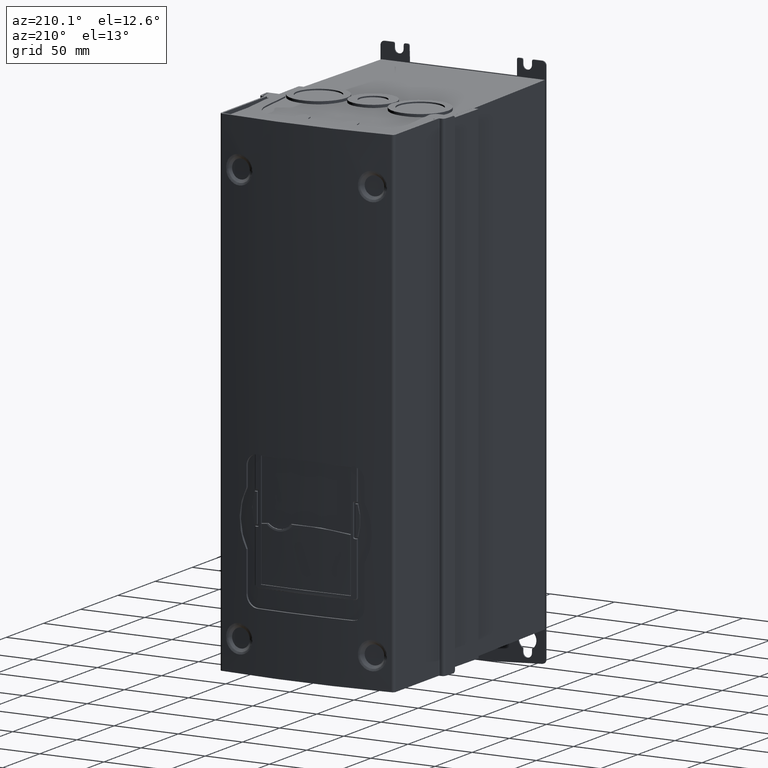
[diagram: clean part render]
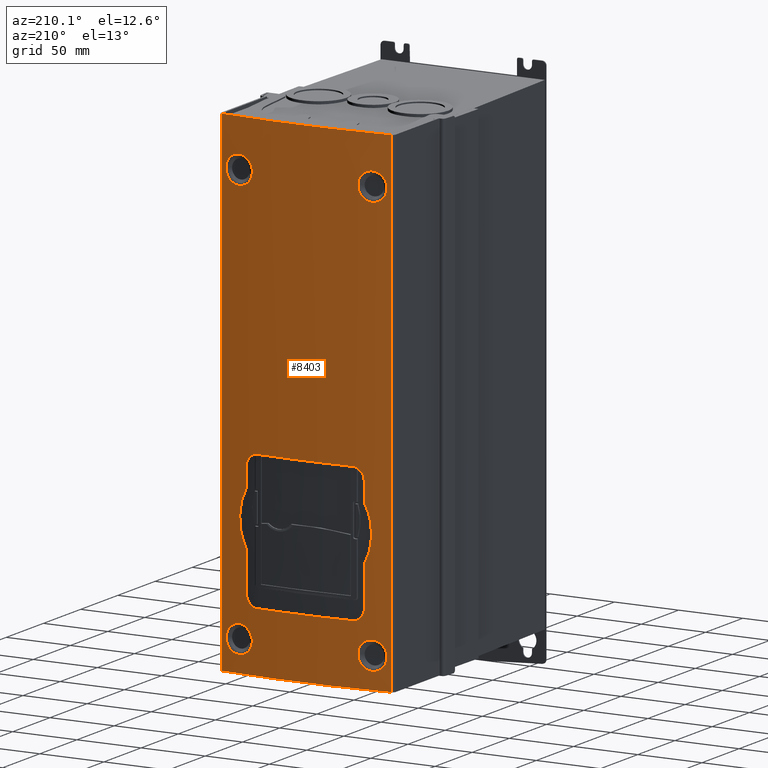
[diagram: same view with one face highlighted and labeled with its STEP entity id]
A machine part, auxiliary view. The second image highlights one B-rep face of the part: STEP entity #8403.
In plain terms, the highlighted cylindrical surface (partial cylindrical patch) has radius 600 mm, axis along (0, 0, -1).
Its self-contained STEP definition (entity closure, byte-faithful):
#794=CARTESIAN_POINT('',(-1.456995434269E1,-5.076258764014E2,1.146372969707E2));
#795=DIRECTION('',(0.E0,0.E0,-1.E0));
#796=DIRECTION('',(-1.099958176491E-1,9.939320500415E-1,0.E0));
#797=AXIS2_PLACEMENT_3D('',#794,#795,#796);
#993=CARTESIAN_POINT('',(-1.456995434269E1,-5.076258764014E2,
-2.703627030293E2));
#994=DIRECTION('',(0.E0,0.E0,1.E0));
#995=DIRECTION('',(1.099958176492E-1,9.939320500415E-1,0.E0));
#996=AXIS2_PLACEMENT_3D('',#993,#994,#995);
#1075=DIRECTION('',(2.521042537788E-14,0.E0,1.E0));
#1076=VECTOR('',#1075,3.85E2);
#1077=CARTESIAN_POINT('',(-8.056744493231E1,8.873335362358E1,
-2.703627030293E2));
#1078=LINE('',#1077,#1076);
#1079=CARTESIAN_POINT('',(-7.730995454613E1,8.908486533088E1,
-2.463635937489E2));
#1080=CARTESIAN_POINT('',(-7.731006341092E1,8.908485388450E1,
-2.462337244367E2));
#1081=CARTESIAN_POINT('',(-7.730544312589E1,8.908531882359E1,
-2.459746975358E2));
#1082=CARTESIAN_POINT('',(-7.728399003530E1,8.908758296976E1,
-2.455854885031E2));
#1083=CARTESIAN_POINT('',(-7.726003886075E1,8.909009688309E1,
-2.453270705908E2));
#1084=CARTESIAN_POINT('',(-7.724564879693E1,8.909160833075E1,
-2.451980033430E2));
#1086=CARTESIAN_POINT('',(2.650471619773E1,9.096654768694E1,7.763695362939E1));
#1087=CARTESIAN_POINT('',(2.650460567603E1,9.096655527080E1,7.778216046579E1));
#1088=CARTESIAN_POINT('',(2.651039665820E1,9.096613481495E1,7.807171792637E1));
#1089=CARTESIAN_POINT('',(2.653715667993E1,9.096430818158E1,7.850672862411E1));
#1090=CARTESIAN_POINT('',(2.656698671610E1,9.096225478851E1,7.879532923927E1));
#1091=CARTESIAN_POINT('',(2.658490353145E1,9.096102294736E1,7.893942890388E1));
#1093=CARTESIAN_POINT('',(-7.730995454618E1,8.908486533087E1,7.763640625593E1));
#1094=CARTESIAN_POINT('',(-7.731006341092E1,8.908485388450E1,7.776627556773E1));
#1095=CARTESIAN_POINT('',(-7.730544312584E1,8.908531882360E1,7.802530246566E1));
#1096=CARTESIAN_POINT('',(-7.728399003524E1,8.908758296977E1,7.841451149822E1));
#1097=CARTESIAN_POINT('',(-7.726003886074E1,8.909009688309E1,7.867292940957E1));
#1098=CARTESIAN_POINT('',(-7.724564879696E1,8.909160833075E1,7.880199665695E1));
#1100=DIRECTION('',(-1.074661148829E-7,-1.400669773210E-6,-9.999999999990E-1));
#1101=VECTOR('',#1100,1.513859129782E1);
#1102=CARTESIAN_POINT('',(3.133004565731E1,9.061587239260E1,-1.260627030293E2));
#1103=LINE('',#1102,#1101);
#1104=CARTESIAN_POINT('',(3.133004403042E1,9.061585118844E1,-1.412012943271E2));
#1105=CARTESIAN_POINT('',(3.255155678056E1,9.052213082314E1,-1.433718353386E2));
#1106=CARTESIAN_POINT('',(3.457561596569E1,9.035963284457E1,-1.478549669794E2));
#1107=CARTESIAN_POINT('',(3.645635227410E1,9.020083705076E1,-1.550589830935E2));
#1108=CARTESIAN_POINT('',(3.709474946389E1,9.014553715977E1,-1.624628071870E2));
#1109=CARTESIAN_POINT('',(3.645632583493E1,9.020084179395E1,-1.698667609765E2));
#1110=CARTESIAN_POINT('',(3.457556432267E1,9.035962725145E1,-1.770706634528E2));
#1111=CARTESIAN_POINT('',(3.255153082913E1,9.052215414325E1,-1.815536579725E2));
#1112=CARTESIAN_POINT('',(3.133004565731E1,9.061587239260E1,-1.837241117314E2));
#1114=DIRECTION('',(-6.855419000246E-14,3.123406981687E-14,-1.E0));
#1115=VECTOR('',#1114,3.093859129789E1);
#1116=CARTESIAN_POINT('',(3.133004565731E1,9.061587239260E1,-1.837241117314E2));
#1117=LINE('',#1116,#1115);
#1118=CARTESIAN_POINT('',(3.133004565731E1,9.061587239260E1,-2.146627030293E2));
#1119=CARTESIAN_POINT('',(3.133559881594E1,9.061544632742E1,-2.154322069549E2));
#1120=CARTESIAN_POINT('',(3.114495038382E1,9.063013210830E1,-2.169321316466E2));
#1121=CARTESIAN_POINT('',(3.023294105414E1,9.069942092342E1,-2.191803379475E2));
#1122=CARTESIAN_POINT('',(2.879319482427E1,9.080587723471E1,-2.210799171779E2));
#1123=CARTESIAN_POINT('',(2.689418176639E1,9.094093866908E1,-2.225407839308E2));
#1124=CARTESIAN_POINT('',(2.463783296036E1,9.109318430442E1,-2.234688784749E2));
#1125=CARTESIAN_POINT('',(2.311463757309E1,9.119002974494E1,-2.236680492371E2));
#1126=CARTESIAN_POINT('',(2.233004565731E1,9.123837365876E1,-2.236627030293E2));
#1128=CARTESIAN_POINT('',(-5.146995434268E1,9.123837365875E1,
-2.236627030293E2));
#1129=CARTESIAN_POINT('',(-5.224285134623E1,9.119075034608E1,
-2.236680614204E2));
#1130=CARTESIAN_POINT('',(-5.374812137644E1,9.109509925359E1,
-2.234750963283E2));
#1131=CARTESIAN_POINT('',(-5.599377466123E1,9.094372845350E1,
-2.225629725475E2));
#1132=CARTESIAN_POINT('',(-5.789902710426E1,9.080835711010E1,
-2.211143459633E2));
#1133=CARTESIAN_POINT('',(-5.935300422266E1,9.070091724251E1,
-2.192172482051E2));
#1134=CARTESIAN_POINT('',(-6.028004712168E1,9.063050366761E1,
-2.169562406526E2));
#1135=CARTESIAN_POINT('',(-6.047549244322E1,9.061544748275E1,
-2.154415016886E2));
#1136=CARTESIAN_POINT('',(-6.046995434269E1,9.061587239260E1,
-2.146627030293E2));
#1138=DIRECTION('',(5.258419219145E-8,-6.853631019701E-7,9.999999999998E-1));
#1139=VECTOR('',#1138,3.093859129788E1);
#1140=CARTESIAN_POINT('',(-6.046995434269E1,9.061587239260E1,
-2.146627030293E2));
#1141=LINE('',#1140,#1139);
#1142=CARTESIAN_POINT('',(-6.046995271581E1,9.061585118843E1,
-1.837241117314E2));
#1143=CARTESIAN_POINT('',(-6.169146546595E1,9.052213082314E1,
-1.815535707199E2));
#1144=CARTESIAN_POINT('',(-6.371552465107E1,9.035963284457E1,
-1.770704390790E2));
#1145=CARTESIAN_POINT('',(-6.559626095949E1,9.020083705076E1,
-1.698664229650E2));
#1146=CARTESIAN_POINT('',(-6.623465814927E1,9.014553715977E1,
-1.624625988713E2));
#1147=CARTESIAN_POINT('',(-6.559623452029E1,9.020084179395E1,
-1.550586450820E2));
#1148=CARTESIAN_POINT('',(-6.371547300804E1,9.035962725145E1,
-1.478547426057E2));
#1149=CARTESIAN_POINT('',(-6.169143951453E1,9.052215414325E1,
-1.433717480861E2));
#1150=CARTESIAN_POINT('',(-6.046995434269E1,9.061587239260E1,
-1.412012943271E2));
#1152=DIRECTION('',(-3.215106111401E-13,4.599713852807E-14,1.E0));
#1153=VECTOR('',#1152,1.513859129780E1);
#1154=CARTESIAN_POINT('',(-6.046995434269E1,9.061587239260E1,
-1.412012943271E2));
#1155=LINE('',#1154,#1153);
#1156=CARTESIAN_POINT('',(-6.046995434269E1,9.061587239260E1,
-1.260627030293E2));
#1157=CARTESIAN_POINT('',(-6.047550750132E1,9.061544632742E1,
-1.252931991037E2));
#1158=CARTESIAN_POINT('',(-6.028485906919E1,9.063013210830E1,
-1.237932744119E2));
#1159=CARTESIAN_POINT('',(-5.937284973961E1,9.069942092342E1,
-1.215450681111E2));
#1160=CARTESIAN_POINT('',(-5.793310350971E1,9.080587723471E1,
-1.196454888807E2));
#1161=CARTESIAN_POINT('',(-5.603409045189E1,9.094093866907E1,
-1.181846221278E2));
#1162=CARTESIAN_POINT('',(-5.377774164577E1,9.109318430441E1,
-1.172565275836E2));
#1163=CARTESIAN_POINT('',(-5.225454625852E1,9.119002974494E1,
-1.170573568215E2));
#1164=CARTESIAN_POINT('',(-5.146995434272E1,9.123837365876E1,
-1.170627030293E2));
#1166=CARTESIAN_POINT('',(2.233004565732E1,9.123837365875E1,-1.170627030293E2));
#1167=CARTESIAN_POINT('',(2.310294266091E1,9.119075034607E1,-1.170573446382E2));
#1168=CARTESIAN_POINT('',(2.460821269116E1,9.109509925359E1,-1.172503097303E2));
#1169=CARTESIAN_POINT('',(2.685386597588E1,9.094372845350E1,-1.181624335110E2));
#1170=CARTESIAN_POINT('',(2.875911841891E1,9.080835711010E1,-1.196110600953E2));
#1171=CARTESIAN_POINT('',(3.021309553730E1,9.070091724251E1,-1.215081578535E2));
#1172=CARTESIAN_POINT('',(3.114013843629E1,9.063050366761E1,-1.237691654058E2));
#1173=CARTESIAN_POINT('',(3.133558375784E1,9.061544748275E1,-1.252839043699E2));
#1174=CARTESIAN_POINT('',(3.133004565731E1,9.061587239260E1,-1.260627030293E2));
#1176=CARTESIAN_POINT('',(2.650471619776E1,9.096654768694E1,-2.463630463681E2));
#1177=CARTESIAN_POINT('',(2.650460567607E1,9.096655527080E1,-2.462178395319E2));
#1178=CARTESIAN_POINT('',(2.651039665826E1,9.096613481495E1,-2.459282820720E2));
#1179=CARTESIAN_POINT('',(2.653715667998E1,9.096430818158E1,-2.454932713750E2));
#1180=CARTESIAN_POINT('',(2.656698671611E1,9.096225478851E1,-2.452046707604E2));
#1181=CARTESIAN_POINT('',(2.658490353144E1,9.096102294736E1,-2.450605710961E2));
#1187=DIRECTION('',(0.E0,0.E0,-1.E0));
#1188=VECTOR('',#1187,3.85E2);
#1189=CARTESIAN_POINT('',(5.142753624694E1,8.873335362358E1,1.146372969707E2));
#1190=LINE('',#1189,#1188);
#2687=CARTESIAN_POINT('',(-1.456995434269E1,-5.076258764014E2,
-1.170627030293E2));
#2688=DIRECTION('',(0.E0,0.E0,1.E0));
#2689=DIRECTION('',(6.150000000001E-2,9.981070834334E-1,0.E0));
#2690=AXIS2_PLACEMENT_3D('',#2687,#2688,#2689);
#3553=CARTESIAN_POINT('',(-1.456995434269E1,-5.076258764014E2,
-2.236627030293E2));
#3554=DIRECTION('',(0.E0,0.E0,-1.E0));
#3555=DIRECTION('',(-6.149999999998E-2,9.981070834334E-1,0.E0));
#3556=AXIS2_PLACEMENT_3D('',#3553,#3554,#3555);
#4722=CARTESIAN_POINT('',(-7.730995454613E1,8.908486533088E1,
-2.463635937489E2));
#4723=CARTESIAN_POINT('',(-7.730226561023E1,8.908567376922E1,
-2.473754471449E2));
#4724=CARTESIAN_POINT('',(-7.703321027110E1,8.911403618278E1,
-2.493183818838E2));
#4725=CARTESIAN_POINT('',(-7.583466153395E1,8.923878996405E1,
-2.520857599052E2));
#4726=CARTESIAN_POINT('',(-7.394199747570E1,8.943073039645E1,
-2.544140769104E2));
#4727=CARTESIAN_POINT('',(-7.145449711496E1,8.967357599359E1,
-2.561304467695E2));
#4728=CARTESIAN_POINT('',(-6.857588023617E1,8.994115721144E1,
-2.571388435311E2));
#4729=CARTESIAN_POINT('',(-6.554846710642E1,9.020712347580E1,
-2.573193879023E2));
#4730=CARTESIAN_POINT('',(-6.257312281741E1,9.045307049004E1,
-2.566242017196E2));
#4731=CARTESIAN_POINT('',(-5.991828568473E1,9.065957999532E1,
-2.551729946316E2));
#4732=CARTESIAN_POINT('',(-5.777439541595E1,9.081750397460E1,
-2.530562766592E2));
#4733=CARTESIAN_POINT('',(-5.629479857561E1,9.092187707058E1,
-2.504156440123E2));
#4734=CARTESIAN_POINT('',(-5.582230876193E1,9.095432334295E1,
-2.485238907817E2));
#4735=CARTESIAN_POINT('',(-5.570867338140E1,9.096213307839E1,
-2.475270192179E2));
#4759=CARTESIAN_POINT('',(-5.570867338140E1,9.096213307839E1,
-2.475270192179E2));
#4760=CARTESIAN_POINT('',(-5.560970696742E1,9.096893467053E1,
-2.465679154080E2));
#4761=CARTESIAN_POINT('',(-5.565032504659E1,9.096617865964E1,
-2.446974482663E2));
#4762=CARTESIAN_POINT('',(-5.647385926531E1,9.090940011697E1,
-2.419350515747E2));
#4763=CARTESIAN_POINT('',(-5.791888141217E1,9.080697917578E1,
-2.395157111449E2));
#4764=CARTESIAN_POINT('',(-5.993813895552E1,9.065784207351E1,
-2.375583258520E2));
#4765=CARTESIAN_POINT('',(-6.237933752117E1,9.046825999291E1,
-2.361979280087E2));
#4766=CARTESIAN_POINT('',(-6.516955698776E1,9.023905859191E1,
-2.354631341537E2));
#4767=CARTESIAN_POINT('',(-6.806688054266E1,8.998673947520E1,
-2.355036135002E2));
#4768=CARTESIAN_POINT('',(-7.084582860680E1,8.973116114596E1,
-2.363098319350E2));
#4769=CARTESIAN_POINT('',(-7.335111822044E1,8.948927834112E1,
-2.378128218915E2));
#4770=CARTESIAN_POINT('',(-7.533515938441E1,8.928996194585E1,
-2.399115845700E2));
#4771=CARTESIAN_POINT('',(-7.669164877137E1,8.914980893625E1,
-2.424349241683E2));
#4772=CARTESIAN_POINT('',(-7.713536018526E1,8.910319239786E1,
-2.442468399123E2));
#4773=CARTESIAN_POINT('',(-7.724564879693E1,8.909160833075E1,
-2.451980033430E2));
#4854=CARTESIAN_POINT('',(2.650471619773E1,9.096654768694E1,7.763695362939E1));
#4855=CARTESIAN_POINT('',(2.651268481329E1,9.096600089042E1,7.662229818983E1));
#4856=CARTESIAN_POINT('',(2.678173552547E1,9.094760928714E1,7.467545857206E1));
#4857=CARTESIAN_POINT('',(2.797945181951E1,9.086416921174E1,7.190766092421E1));
#4858=CARTESIAN_POINT('',(2.986628419366E1,9.072772695910E1,6.958412621970E1));
#4859=CARTESIAN_POINT('',(3.234387227866E1,9.053927178541E1,6.787359855877E1));
#4860=CARTESIAN_POINT('',(3.520184292802E1,9.030866720224E1,6.686857569460E1));
#4861=CARTESIAN_POINT('',(3.820812042322E1,9.005091231212E1,6.667833355756E1));
#4862=CARTESIAN_POINT('',(4.116782178696E1,8.978186566478E1,6.735518754604E1));
#4863=CARTESIAN_POINT('',(4.381054339762E1,8.952877034601E1,6.877569214192E1));
#4864=CARTESIAN_POINT('',(4.595600875590E1,8.931443448797E1,7.084699584835E1));
#4865=CARTESIAN_POINT('',(4.746083121844E1,8.915933422268E1,7.345399972416E1));
#4866=CARTESIAN_POINT('',(4.795973713730E1,8.910693835452E1,7.533959452901E1));
#4867=CARTESIAN_POINT('',(4.808962635237E1,8.909329910161E1,7.633675166656E1));
#4897=CARTESIAN_POINT('',(4.808962635237E1,8.909329910161E1,7.633675166656E1));
#4898=CARTESIAN_POINT('',(4.820853024590E1,8.908081338233E1,7.725745234096E1));
#4899=CARTESIAN_POINT('',(4.819632665829E1,8.908211348494E1,7.908655537160E1));
#4900=CARTESIAN_POINT('',(4.738754416009E1,8.916696682004E1,8.197634623191E1));
#4901=CARTESIAN_POINT('',(4.590926314218E1,8.931910430838E1,8.446318120004E1));
#4902=CARTESIAN_POINT('',(4.386503944279E1,8.952327946980E1,8.644860065873E1));
#4903=CARTESIAN_POINT('',(4.136671016009E1,8.976300655030E1,8.782706358051E1));
#4904=CARTESIAN_POINT('',(3.860092725713E1,9.001577498283E1,8.853672570331E1));
#4905=CARTESIAN_POINT('',(3.576857726760E1,9.026098152421E1,8.849538751730E1));
#4906=CARTESIAN_POINT('',(3.302379273710E1,9.048545416683E1,8.771676354320E1));
#4907=CARTESIAN_POINT('',(3.055881728138E1,9.067597104399E1,8.626564759714E1));
#4908=CARTESIAN_POINT('',(2.855234532317E1,9.082331668897E1,8.420067519561E1));
#4909=CARTESIAN_POINT('',(2.716279957310E1,9.092129554835E1,8.166922687918E1));
#4910=CARTESIAN_POINT('',(2.670283391996E1,9.095291483757E1,7.987813628774E1));
#4911=CARTESIAN_POINT('',(2.658490353145E1,9.096102294736E1,7.893942890388E1));
#4986=CARTESIAN_POINT('',(-7.730995454618E1,8.908486533087E1,7.763640625593E1));
#4987=CARTESIAN_POINT('',(-7.730226561014E1,8.908567376922E1,7.662455285720E1));
#4988=CARTESIAN_POINT('',(-7.703321027056E1,8.911403618283E1,7.468161811221E1));
#4989=CARTESIAN_POINT('',(-7.583466153180E1,8.923878996427E1,7.191424009139E1));
#4990=CARTESIAN_POINT('',(-7.394199747210E1,8.943073039681E1,6.958592308624E1));
#4991=CARTESIAN_POINT('',(-7.145449711040E1,8.967357599402E1,6.786955322818E1));
#4992=CARTESIAN_POINT('',(-6.857588023082E1,8.994115721192E1,6.686115646779E1));
#4993=CARTESIAN_POINT('',(-6.554846710133E1,9.020712347623E1,6.668061209821E1));
#4994=CARTESIAN_POINT('',(-6.257312281317E1,9.045307049038E1,6.737579828217E1));
#4995=CARTESIAN_POINT('',(-5.991828568202E1,9.065957999552E1,6.882700537052E1));
#4996=CARTESIAN_POINT('',(-5.777439541463E1,9.081750397469E1,7.094372334266E1));
#4997=CARTESIAN_POINT('',(-5.629479857532E1,9.092187707060E1,7.358435598882E1));
#4998=CARTESIAN_POINT('',(-5.582230876190E1,9.095432334295E1,7.547610921873E1));
#4999=CARTESIAN_POINT('',(-5.570867338140E1,9.096213307839E1,7.647298078212E1));
#5023=CARTESIAN_POINT('',(-5.570867338140E1,9.096213307839E1,7.647298078212E1));
#5024=CARTESIAN_POINT('',(-5.560970696742E1,9.096893467053E1,7.743208459230E1));
#5025=CARTESIAN_POINT('',(-5.565032504663E1,9.096617865964E1,7.930255173439E1));
#5026=CARTESIAN_POINT('',(-5.647385926573E1,9.090940011694E1,8.206494842634E1));
#5027=CARTESIAN_POINT('',(-5.791888141289E1,9.080697917572E1,8.448428885604E1));
#5028=CARTESIAN_POINT('',(-5.993813895650E1,9.065784207344E1,8.644167414870E1));
#5029=CARTESIAN_POINT('',(-6.237933752210E1,9.046825999283E1,8.780207199170E1));
#5030=CARTESIAN_POINT('',(-6.516955698846E1,9.023905859185E1,8.853686584641E1));
#5031=CARTESIAN_POINT('',(-6.806688054316E1,8.998673947516E1,8.849638649968E1));
#5032=CARTESIAN_POINT('',(-7.084582860719E1,8.973116114593E1,8.769016806481E1));
#5033=CARTESIAN_POINT('',(-7.335111822076E1,8.948927834108E1,8.618717810814E1));
#5034=CARTESIAN_POINT('',(-7.533515938464E1,8.928996194582E1,8.408841542970E1));
#5035=CARTESIAN_POINT('',(-7.669164877146E1,8.914980893624E1,8.156507583140E1));
#5036=CARTESIAN_POINT('',(-7.713536018530E1,8.910319239785E1,7.975316008763E1));
#5037=CARTESIAN_POINT('',(-7.724564879696E1,8.909160833075E1,7.880199665695E1));
#5118=CARTESIAN_POINT('',(2.650471619776E1,9.096654768694E1,-2.463630463681E2));
#5119=CARTESIAN_POINT('',(2.651268481340E1,9.096600089041E1,-2.473777018097E2));
#5120=CARTESIAN_POINT('',(2.678173552586E1,9.094760928711E1,-2.493245414305E2));
#5121=CARTESIAN_POINT('',(2.797945182105E1,9.086416921164E1,-2.520923390784E2));
#5122=CARTESIAN_POINT('',(2.986628419604E1,9.072772695893E1,-2.544158737825E2));
#5123=CARTESIAN_POINT('',(3.234387228137E1,9.053927178520E1,-2.561264014426E2));
#5124=CARTESIAN_POINT('',(3.520184293115E1,9.030866720198E1,-2.571314243060E2));
#5125=CARTESIAN_POINT('',(3.820812042598E1,9.005091231187E1,-2.573216664421E2));
#5126=CARTESIAN_POINT('',(4.116782178900E1,8.978186566459E1,-2.566448124531E2));
#5127=CARTESIAN_POINT('',(4.381054339875E1,8.952877034590E1,-2.552243078571E2));
#5128=CARTESIAN_POINT('',(4.595600875631E1,8.931443448793E1,-2.531530041510E2));
#5129=CARTESIAN_POINT('',(4.746083121848E1,8.915933422268E1,-2.505460002756E2));
#5130=CARTESIAN_POINT('',(4.795973713729E1,8.910693835452E1,-2.486604054709E2));
#5131=CARTESIAN_POINT('',(4.808962635238E1,8.909329910160E1,-2.476632483335E2));
#5161=CARTESIAN_POINT('',(4.808962635238E1,8.909329910160E1,-2.476632483335E2));
#5162=CARTESIAN_POINT('',(4.820853024590E1,8.908081338233E1,-2.467425476590E2));
#5163=CARTESIAN_POINT('',(4.819632665828E1,8.908211348494E1,-2.449134446283E2));
#5164=CARTESIAN_POINT('',(4.738754416010E1,8.916696682004E1,-2.420236537681E2));
#5165=CARTESIAN_POINT('',(4.590926314220E1,8.931910430838E1,-2.395368188E2));
#5166=CARTESIAN_POINT('',(4.386503944274E1,8.952327946980E1,-2.375513993412E2));
#5167=CARTESIAN_POINT('',(4.136671016013E1,8.976300655030E1,-2.361729364195E2));
#5168=CARTESIAN_POINT('',(3.860092725739E1,9.001577498281E1,-2.354632742968E2));
#5169=CARTESIAN_POINT('',(3.576857726788E1,9.026098152419E1,-2.355046124827E2));
#5170=CARTESIAN_POINT('',(3.302379273732E1,9.048545416681E1,-2.362832364567E2));
#5171=CARTESIAN_POINT('',(3.055881728153E1,9.067597104398E1,-2.377343524028E2));
#5172=CARTESIAN_POINT('',(2.855234532336E1,9.082331668896E1,-2.397993248042E2));
#5173=CARTESIAN_POINT('',(2.716279957319E1,9.092129554834E1,-2.423307731205E2));
#5174=CARTESIAN_POINT('',(2.670283391999E1,9.095291483756E1,-2.441218637121E2));
#5175=CARTESIAN_POINT('',(2.658490353144E1,9.096102294736E1,-2.450605710961E2));
#6940=CARTESIAN_POINT('',(-8.056744493219E1,8.873335362358E1,1.146372969707E2));
#6941=VERTEX_POINT('',#6940);
#6942=CARTESIAN_POINT('',(5.142753624683E1,8.873335362360E1,1.146372969707E2));
#6943=VERTEX_POINT('',#6942);
#7016=CARTESIAN_POINT('',(5.142753624682E1,8.873335362358E1,-2.703627030293E2));
#7017=VERTEX_POINT('',#7016);
#7018=CARTESIAN_POINT('',(-8.056744493221E1,8.873335362360E1,
-2.703627030293E2));
#7019=VERTEX_POINT('',#7018);
#7084=CARTESIAN_POINT('',(3.133004565731E1,9.061587239260E1,-1.260627030293E2));
#7085=VERTEX_POINT('',#7084);
#7086=VERTEX_POINT('',#1166);
#7117=CARTESIAN_POINT('',(-5.146995434272E1,9.123837365876E1,
-1.170627030293E2));
#7118=VERTEX_POINT('',#7117);
#7119=VERTEX_POINT('',#1156);
#7120=VERTEX_POINT('',#4722);
#7121=VERTEX_POINT('',#4735);
#7122=VERTEX_POINT('',#1084);
#7123=VERTEX_POINT('',#4854);
#7124=VERTEX_POINT('',#4867);
#7125=VERTEX_POINT('',#1091);
#7126=VERTEX_POINT('',#4986);
#7127=VERTEX_POINT('',#4999);
#7128=VERTEX_POINT('',#1098);
#7129=CARTESIAN_POINT('',(3.133004403042E1,9.061585118844E1,-1.412012943271E2));
#7130=VERTEX_POINT('',#7129);
#7131=VERTEX_POINT('',#1112);
#7132=CARTESIAN_POINT('',(3.133004565731E1,9.061587239260E1,-2.146627030293E2));
#7133=VERTEX_POINT('',#7132);
#7134=VERTEX_POINT('',#1126);
#7135=CARTESIAN_POINT('',(-5.146995434268E1,9.123837365876E1,
-2.236627030293E2));
#7136=VERTEX_POINT('',#7135);
#7137=VERTEX_POINT('',#1136);
#7138=CARTESIAN_POINT('',(-6.046995271581E1,9.061585118843E1,
-1.837241117314E2));
#7139=VERTEX_POINT('',#7138);
#7140=VERTEX_POINT('',#1150);
#7141=VERTEX_POINT('',#5118);
#7142=VERTEX_POINT('',#5131);
#7143=VERTEX_POINT('',#1181);
#8333=CARTESIAN_POINT('',(-1.456995434269E1,-5.076258764014E2,
1.339084586733E2));
#8334=DIRECTION('',(0.E0,0.E0,-1.E0));
#8335=DIRECTION('',(-1.133333333333E-1,9.935570217937E-1,0.E0));
#8336=AXIS2_PLACEMENT_3D('',#8333,#8334,#8335);
#8337=CYLINDRICAL_SURFACE('',#8336,6.000000000001E2);
#8338=ORIENTED_EDGE('',*,*,#8146,.F.);
#8340=ORIENTED_EDGE('',*,*,#8339,.F.);
#8341=ORIENTED_EDGE('',*,*,#7982,.F.);
#8342=ORIENTED_EDGE('',*,*,#8321,.F.);
#8343=EDGE_LOOP('',(#8338,#8340,#8341,#8342));
#8344=FACE_OUTER_BOUND('',#8343,.F.);
#8346=ORIENTED_EDGE('',*,*,#8345,.F.);
#8348=ORIENTED_EDGE('',*,*,#8347,.T.);
#8350=ORIENTED_EDGE('',*,*,#8349,.F.);
#8351=EDGE_LOOP('',(#8346,#8348,#8350));
#8352=FACE_BOUND('',#8351,.F.);
#8354=ORIENTED_EDGE('',*,*,#8353,.F.);
#8356=ORIENTED_EDGE('',*,*,#8355,.T.);
#8358=ORIENTED_EDGE('',*,*,#8357,.F.);
#8359=EDGE_LOOP('',(#8354,#8356,#8358));
#8360=FACE_BOUND('',#8359,.F.);
#8362=ORIENTED_EDGE('',*,*,#8361,.F.);
#8364=ORIENTED_EDGE('',*,*,#8363,.T.);
#8366=ORIENTED_EDGE('',*,*,#8365,.F.);
#8367=EDGE_LOOP('',(#8362,#8364,#8366));
#8368=FACE_BOUND('',#8367,.F.);
#8370=ORIENTED_EDGE('',*,*,#8369,.T.);
#8372=ORIENTED_EDGE('',*,*,#8371,.T.);
#8374=ORIENTED_EDGE('',*,*,#8373,.T.);
#8376=ORIENTED_EDGE('',*,*,#8375,.T.);
#8378=ORIENTED_EDGE('',*,*,#8377,.F.);
#8380=ORIENTED_EDGE('',*,*,#8379,.T.);
#8382=ORIENTED_EDGE('',*,*,#8381,.T.);
#8384=ORIENTED_EDGE('',*,*,#8383,.T.);
#8386=ORIENTED_EDGE('',*,*,#8385,.T.);
#8388=ORIENTED_EDGE('',*,*,#8387,.T.);
#8390=ORIENTED_EDGE('',*,*,#8389,.F.);
#8392=ORIENTED_EDGE('',*,*,#8391,.T.);
#8393=EDGE_LOOP('',(#8370,#8372,#8374,#8376,#8378,#8380,#8382,#8384,#8386,#8388,
#8390,#8392));
#8394=FACE_BOUND('',#8393,.F.);
#8396=ORIENTED_EDGE('',*,*,#8395,.F.);
#8398=ORIENTED_EDGE('',*,*,#8397,.T.);
#8400=ORIENTED_EDGE('',*,*,#8399,.F.);
#8401=EDGE_LOOP('',(#8396,#8398,#8400));
#8402=FACE_BOUND('',#8401,.F.);
#8403=ADVANCED_FACE('',(#8344,#8352,#8360,#8368,#8394,#8402),#8337,.T.);
#798=CIRCLE('',#797,6.000000000001E2);
#997=CIRCLE('',#996,6.000000000001E2);
#1085=B_SPLINE_CURVE_WITH_KNOTS('',3,(#1079,#1080,#1081,#1082,#1083,#1084),
.UNSPECIFIED.,.F.,.F.,(4,1,1,4),(0.E0,3.333333333333E-1,6.666666666667E-1,1.E0),
.UNSPECIFIED.);
#1092=B_SPLINE_CURVE_WITH_KNOTS('',3,(#1086,#1087,#1088,#1089,#1090,#1091),
.UNSPECIFIED.,.F.,.F.,(4,1,1,4),(0.E0,3.333333333333E-1,6.666666666667E-1,1.E0),
.UNSPECIFIED.);
#1099=B_SPLINE_CURVE_WITH_KNOTS('',3,(#1093,#1094,#1095,#1096,#1097,#1098),
.UNSPECIFIED.,.F.,.F.,(4,1,1,4),(0.E0,3.333333333333E-1,6.666666666667E-1,1.E0),
.UNSPECIFIED.);
#1113=B_SPLINE_CURVE_WITH_KNOTS('',3,(#1104,#1105,#1106,#1107,#1108,#1109,#1110,
#1111,#1112),.UNSPECIFIED.,.F.,.F.,(4,1,1,1,1,1,4),(0.E0,1.666666666667E-1,
3.333333333333E-1,5.E-1,6.666666666667E-1,8.333333333333E-1,1.E0),
.UNSPECIFIED.);
#1127=B_SPLINE_CURVE_WITH_KNOTS('',3,(#1118,#1119,#1120,#1121,#1122,#1123,#1124,
#1125,#1126),.UNSPECIFIED.,.F.,.F.,(4,1,1,1,1,1,4),(0.E0,1.666666666667E-1,
3.333333333333E-1,5.E-1,6.666666666667E-1,8.333333333333E-1,1.E0),
.UNSPECIFIED.);
#1137=B_SPLINE_CURVE_WITH_KNOTS('',3,(#1128,#1129,#1130,#1131,#1132,#1133,#1134,
#1135,#1136),.UNSPECIFIED.,.F.,.F.,(4,1,1,1,1,1,4),(0.E0,1.666666666667E-1,
3.333333333333E-1,5.E-1,6.666666666667E-1,8.333333333333E-1,1.E0),
.UNSPECIFIED.);
#1151=B_SPLINE_CURVE_WITH_KNOTS('',3,(#1142,#1143,#1144,#1145,#1146,#1147,#1148,
#1149,#1150),.UNSPECIFIED.,.F.,.F.,(4,1,1,1,1,1,4),(0.E0,1.666666666667E-1,
3.333333333333E-1,5.E-1,6.666666666667E-1,8.333333333333E-1,1.E0),
.UNSPECIFIED.);
#1165=B_SPLINE_CURVE_WITH_KNOTS('',3,(#1156,#1157,#1158,#1159,#1160,#1161,#1162,
#1163,#1164),.UNSPECIFIED.,.F.,.F.,(4,1,1,1,1,1,4),(0.E0,1.666666666667E-1,
3.333333333333E-1,5.E-1,6.666666666667E-1,8.333333333333E-1,1.E0),
.UNSPECIFIED.);
#1175=B_SPLINE_CURVE_WITH_KNOTS('',3,(#1166,#1167,#1168,#1169,#1170,#1171,#1172,
#1173,#1174),.UNSPECIFIED.,.F.,.F.,(4,1,1,1,1,1,4),(0.E0,1.666666666667E-1,
3.333333333333E-1,5.E-1,6.666666666667E-1,8.333333333333E-1,1.E0),
.UNSPECIFIED.);
#1182=B_SPLINE_CURVE_WITH_KNOTS('',3,(#1176,#1177,#1178,#1179,#1180,#1181),
.UNSPECIFIED.,.F.,.F.,(4,1,1,4),(0.E0,3.333333333333E-1,6.666666666667E-1,1.E0),
.UNSPECIFIED.);
#2691=CIRCLE('',#2690,6.000000000001E2);
#3557=CIRCLE('',#3556,6.000000000001E2);
#4736=B_SPLINE_CURVE_WITH_KNOTS('',3,(#4722,#4723,#4724,#4725,#4726,#4727,#4728,
#4729,#4730,#4731,#4732,#4733,#4734,#4735),.UNSPECIFIED.,.F.,.F.,(4,1,1,1,1,1,1,
1,1,1,1,4),(0.E0,9.090909090909E-2,1.818181818182E-1,2.727272727273E-1,
3.636363636364E-1,4.545454545455E-1,5.454545454545E-1,6.363636363636E-1,
7.272727272727E-1,8.181818181818E-1,9.090909090909E-1,1.E0),.UNSPECIFIED.);
#4774=B_SPLINE_CURVE_WITH_KNOTS('',3,(#4759,#4760,#4761,#4762,#4763,#4764,#4765,
#4766,#4767,#4768,#4769,#4770,#4771,#4772,#4773),.UNSPECIFIED.,.F.,.F.,(4,1,1,1,
1,1,1,1,1,1,1,1,4),(0.E0,8.333333333333E-2,1.666666666667E-1,2.5E-1,
3.333333333333E-1,4.166666666667E-1,5.E-1,5.833333333333E-1,6.666666666667E-1,
7.5E-1,8.333333333333E-1,9.166666666667E-1,1.E0),.UNSPECIFIED.);
#4868=B_SPLINE_CURVE_WITH_KNOTS('',3,(#4854,#4855,#4856,#4857,#4858,#4859,#4860,
#4861,#4862,#4863,#4864,#4865,#4866,#4867),.UNSPECIFIED.,.F.,.F.,(4,1,1,1,1,1,1,
1,1,1,1,4),(0.E0,9.090909090909E-2,1.818181818182E-1,2.727272727273E-1,
3.636363636364E-1,4.545454545455E-1,5.454545454545E-1,6.363636363636E-1,
7.272727272727E-1,8.181818181818E-1,9.090909090909E-1,1.E0),.UNSPECIFIED.);
#4912=B_SPLINE_CURVE_WITH_KNOTS('',3,(#4897,#4898,#4899,#4900,#4901,#4902,#4903,
#4904,#4905,#4906,#4907,#4908,#4909,#4910,#4911),.UNSPECIFIED.,.F.,.F.,(4,1,1,1,
1,1,1,1,1,1,1,1,4),(0.E0,8.333333333333E-2,1.666666666667E-1,2.5E-1,
3.333333333333E-1,4.166666666667E-1,5.E-1,5.833333333333E-1,6.666666666667E-1,
7.5E-1,8.333333333333E-1,9.166666666667E-1,1.E0),.UNSPECIFIED.);
#5000=B_SPLINE_CURVE_WITH_KNOTS('',3,(#4986,#4987,#4988,#4989,#4990,#4991,#4992,
#4993,#4994,#4995,#4996,#4997,#4998,#4999),.UNSPECIFIED.,.F.,.F.,(4,1,1,1,1,1,1,
1,1,1,1,4),(0.E0,9.090909090909E-2,1.818181818182E-1,2.727272727273E-1,
3.636363636364E-1,4.545454545455E-1,5.454545454545E-1,6.363636363636E-1,
7.272727272727E-1,8.181818181818E-1,9.090909090909E-1,1.E0),.UNSPECIFIED.);
#5038=B_SPLINE_CURVE_WITH_KNOTS('',3,(#5023,#5024,#5025,#5026,#5027,#5028,#5029,
#5030,#5031,#5032,#5033,#5034,#5035,#5036,#5037),.UNSPECIFIED.,.F.,.F.,(4,1,1,1,
1,1,1,1,1,1,1,1,4),(0.E0,8.333333333333E-2,1.666666666667E-1,2.5E-1,
3.333333333333E-1,4.166666666667E-1,5.E-1,5.833333333333E-1,6.666666666667E-1,
7.5E-1,8.333333333333E-1,9.166666666667E-1,1.E0),.UNSPECIFIED.);
#5132=B_SPLINE_CURVE_WITH_KNOTS('',3,(#5118,#5119,#5120,#5121,#5122,#5123,#5124,
#5125,#5126,#5127,#5128,#5129,#5130,#5131),.UNSPECIFIED.,.F.,.F.,(4,1,1,1,1,1,1,
1,1,1,1,4),(0.E0,9.090909090909E-2,1.818181818182E-1,2.727272727273E-1,
3.636363636364E-1,4.545454545455E-1,5.454545454545E-1,6.363636363636E-1,
7.272727272727E-1,8.181818181818E-1,9.090909090909E-1,1.E0),.UNSPECIFIED.);
#5176=B_SPLINE_CURVE_WITH_KNOTS('',3,(#5161,#5162,#5163,#5164,#5165,#5166,#5167,
#5168,#5169,#5170,#5171,#5172,#5173,#5174,#5175),.UNSPECIFIED.,.F.,.F.,(4,1,1,1,
1,1,1,1,1,1,1,1,4),(0.E0,8.333333333333E-2,1.666666666667E-1,2.5E-1,
3.333333333333E-1,4.166666666667E-1,5.E-1,5.833333333333E-1,6.666666666667E-1,
7.5E-1,8.333333333333E-1,9.166666666667E-1,1.E0),.UNSPECIFIED.);
#7982=EDGE_CURVE('',#6941,#6943,#798,.T.);
#8146=EDGE_CURVE('',#7017,#7019,#997,.T.);
#8321=EDGE_CURVE('',#7019,#6941,#1078,.T.);
#8339=EDGE_CURVE('',#6943,#7017,#1190,.T.);
#8345=EDGE_CURVE('',#7120,#7121,#4736,.T.);
#8347=EDGE_CURVE('',#7120,#7122,#1085,.T.);
#8349=EDGE_CURVE('',#7121,#7122,#4774,.T.);
#8353=EDGE_CURVE('',#7123,#7124,#4868,.T.);
#8355=EDGE_CURVE('',#7123,#7125,#1092,.T.);
#8357=EDGE_CURVE('',#7124,#7125,#4912,.T.);
#8361=EDGE_CURVE('',#7126,#7127,#5000,.T.);
#8363=EDGE_CURVE('',#7126,#7128,#1099,.T.);
#8365=EDGE_CURVE('',#7127,#7128,#5038,.T.);
#8369=EDGE_CURVE('',#7085,#7130,#1103,.T.);
#8371=EDGE_CURVE('',#7130,#7131,#1113,.T.);
#8373=EDGE_CURVE('',#7131,#7133,#1117,.T.);
#8375=EDGE_CURVE('',#7133,#7134,#1127,.T.);
#8377=EDGE_CURVE('',#7136,#7134,#3557,.T.);
#8379=EDGE_CURVE('',#7136,#7137,#1137,.T.);
#8381=EDGE_CURVE('',#7137,#7139,#1141,.T.);
#8383=EDGE_CURVE('',#7139,#7140,#1151,.T.);
#8385=EDGE_CURVE('',#7140,#7119,#1155,.T.);
#8387=EDGE_CURVE('',#7119,#7118,#1165,.T.);
#8389=EDGE_CURVE('',#7086,#7118,#2691,.T.);
#8391=EDGE_CURVE('',#7086,#7085,#1175,.T.);
#8395=EDGE_CURVE('',#7141,#7142,#5132,.T.);
#8397=EDGE_CURVE('',#7141,#7143,#1182,.T.);
#8399=EDGE_CURVE('',#7142,#7143,#5176,.T.);